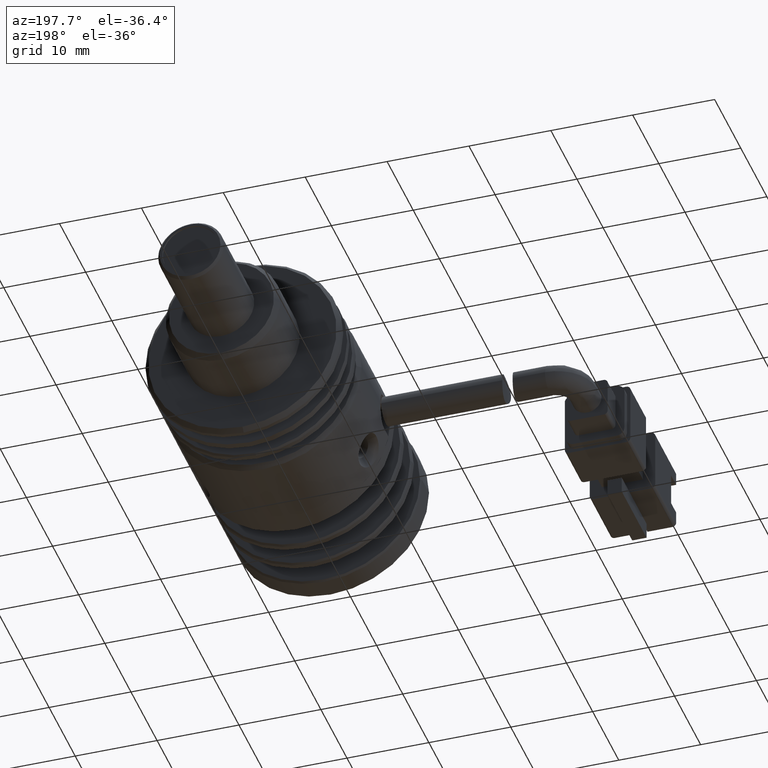
[diagram: clean part render]
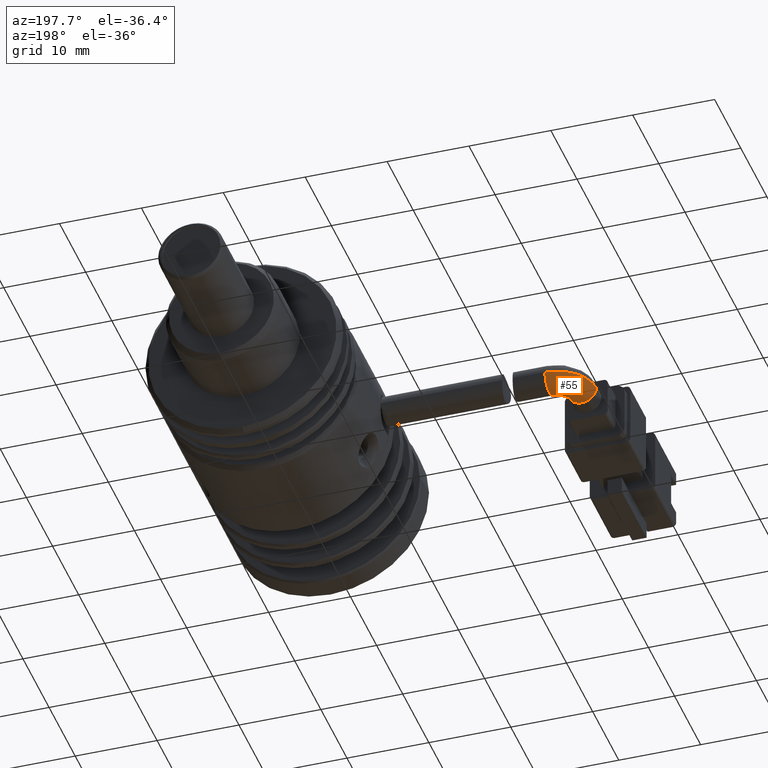
[diagram: same view with one face highlighted and labeled with its STEP entity id]
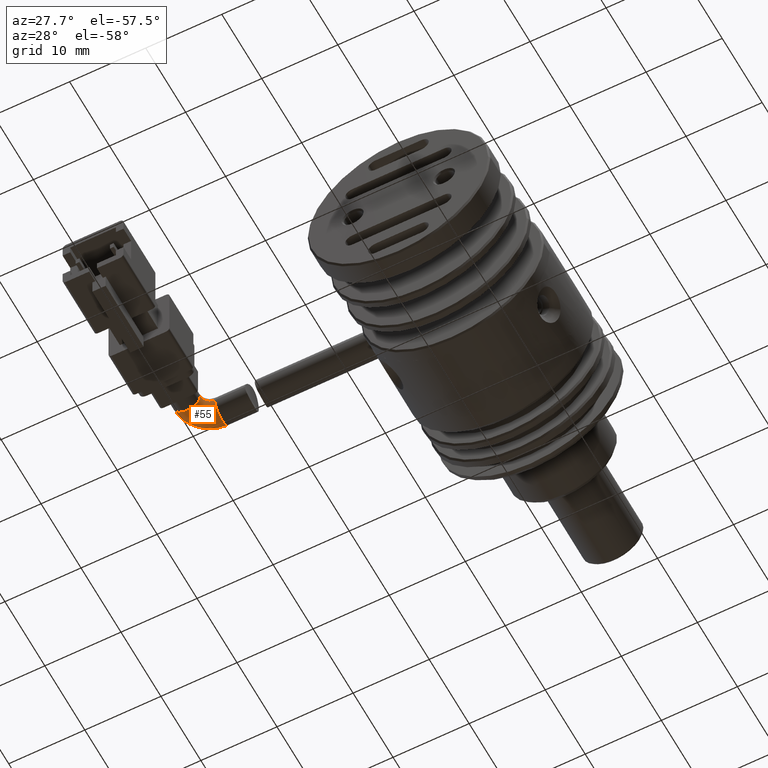
[diagram: same view with one face highlighted and labeled with its STEP entity id]
A machine part, auxiliary view. The second image highlights one B-rep face of the part: STEP entity #55.
A second angle (auxiliary view) of the same face is appended — the face is thin or edge-on in the first view.
In plain terms, the highlighted face is a freeform B-spline surface patch.
Its self-contained STEP definition (entity closure, byte-faithful):
#55 = ADVANCED_FACE ( 'NONE', ( #13978 ), #15853, .T. ) ;
#317 = CARTESIAN_POINT ( 'NONE',  ( -29.42506621236420017, -15.71493551001254829, -9.074035921659389103 ) ) ;
#512 = CARTESIAN_POINT ( 'NONE',  ( -30.67506621236416109, -16.23270246297893493, -9.074035921659401538 ) ) ;
#608 = CARTESIAN_POINT ( 'NONE',  ( -32.20755179109197286, -12.21493551001253763, -12.57403592165937845 ) ) ;
#1028 = EDGE_CURVE ( 'NONE', #16681, #16221, #11079, .T. ) ;
#1451 = DIRECTION ( 'NONE',  ( 0.000000000000000000, -1.000000000000000000, -1.137978600240786046E-15 ) ) ;
#1714 = AXIS2_PLACEMENT_3D ( 'NONE', #4270, #4687, #3077 ) ;
#1960 = DIRECTION ( 'NONE',  ( -1.000000000000000000, 3.559116469604339946E-32, -3.590459175806339545E-17 ) ) ;
#1982 = ORIENTED_EDGE ( 'NONE', *, *, #3957, .T. ) ;
#1996 = AXIS2_PLACEMENT_3D ( 'NONE', #5134, #1960, #7897 ) ;
#2092 = CARTESIAN_POINT ( 'NONE',  ( -34.17506621236413622, -16.96493551001255540, -12.57403592165939266 ) ) ;
#2626 = CIRCLE ( 'NONE', #1714, 1.250000000000001110 ) ;
#3077 = DIRECTION ( 'NONE',  ( 0.000000000000000000, 1.000000000000000000, 1.387778780781444492E-15 ) ) ;
#3957 = EDGE_CURVE ( 'NONE', #16681, #10288, #18325, .T. ) ;
#4033 = AXIS2_PLACEMENT_3D ( 'NONE', #15003, #6066, #18197 ) ;
#4121 = CARTESIAN_POINT ( 'NONE',  ( -29.42506621236420017, -15.71493551001254829, -9.074035921659389103 ) ) ;
#4270 = CARTESIAN_POINT ( 'NONE',  ( -29.42506621236420017, -16.96493551001254829, -9.074035921659399762 ) ) ;
#4687 = DIRECTION ( 'NONE',  ( 3.590459175806344475E-17, 1.387778780781448042E-15, -1.000000000000000000 ) ) ;
#5068 = CARTESIAN_POINT ( 'NONE',  ( -30.15729925939781353, -15.71493551001253586, -12.57403592165939976 ) ) ;
#5134 = CARTESIAN_POINT ( 'NONE',  ( -29.42506621236420017, -13.96493551001255895, -9.074035921659389103 ) ) ;
#6066 = DIRECTION ( 'NONE',  ( 3.590459175806344475E-17, 1.095614826932720052E-15, -1.000000000000000000 ) ) ;
#6102 = ORIENTED_EDGE ( 'NONE', *, *, #17187, .T. ) ;
#6354 = CARTESIAN_POINT ( 'NONE',  ( -29.42506621236417530, -12.21493551001254829, -12.57403592165939266 ) ) ;
#6554 = CARTESIAN_POINT ( 'NONE',  ( -30.15729925939781353, -15.71493551001257316, -9.074035921659401538 ) ) ;
#6653 = CARTESIAN_POINT ( 'NONE',  ( -30.67506621236420017, -16.96493551001254829, -9.074035921659399762 ) ) ;
#6954 = ORIENTED_EDGE ( 'NONE', *, *, #13623, .F. ) ;
#7577 = EDGE_LOOP ( 'NONE', ( #6954, #9857, #1982, #6102 ) ) ;
#7897 = DIRECTION ( 'NONE',  ( 0.000000000000000000, 1.000000000000000000, 9.912705577010326536E-16 ) ) ;
#8593 = CARTESIAN_POINT ( 'NONE',  ( -34.17506621236419306, -14.18244993128475251, -9.074035921659387327 ) ) ;
#8967 = CARTESIAN_POINT ( 'NONE',  ( -32.42506621236420017, -16.96493551001254829, -9.074035921659399762 ) ) ;
#9613 = CARTESIAN_POINT ( 'NONE',  ( -29.42506621236417530, -15.71493551001253941, -12.57403592165939266 ) ) ;
#9857 = ORIENTED_EDGE ( 'NONE', *, *, #1028, .F. ) ;
#9936 = VERTEX_POINT ( 'NONE', #4121 ) ;
#10288 = VERTEX_POINT ( 'NONE', #11168 ) ;
#11079 = CIRCLE ( 'NONE', #12651, 1.750000000000001554 ) ;
#11168 = CARTESIAN_POINT ( 'NONE',  ( -29.42506621236420017, -12.21493551001255895, -9.074035921659389103 ) ) ;
#11218 = CARTESIAN_POINT ( 'NONE',  ( -30.67506621236420017, -16.96493551001254829, -9.074035921659399762 ) ) ;
#12651 = AXIS2_PLACEMENT_3D ( 'NONE', #8967, #1451, #14828 ) ;
#12688 = CARTESIAN_POINT ( 'NONE',  ( -34.17506621236417885, -14.18244993128474540, -12.57403592165939976 ) ) ;
#13623 = EDGE_CURVE ( 'NONE', #16221, #9936, #2626, .T. ) ;
#13978 = FACE_OUTER_BOUND ( 'NONE', #7577, .T. ) ;
#14828 = DIRECTION ( 'NONE',  ( -1.000000000000000000, 0.000000000000000000, 0.000000000000000000 ) ) ;
#14933 = CARTESIAN_POINT ( 'NONE',  ( -34.17506621236420017, -16.96493551001254829, -9.074035921659399762 ) ) ;
#14975 = CIRCLE ( 'NONE', #1996, 1.749999999999999778 ) ;
#15003 = CARTESIAN_POINT ( 'NONE',  ( -29.42506621236420017, -16.96493551001254829, -9.074035921659399762 ) ) ;
#15490 = CARTESIAN_POINT ( 'NONE',  ( -30.67506621236418596, -16.23270246297893138, -12.57403592165939976 ) ) ;
#15853 =( BOUNDED_SURFACE ( )  B_SPLINE_SURFACE ( 3, 3, ( 
 ( #6653, #512, #6554, #317 ),
 ( #18673, #15490, #5068, #9613 ),
 ( #2092, #12688, #608, #6354 ),
 ( #18766, #8593, #17760, #15878 ) ),
 .UNSPECIFIED., .F., .F., .T. ) 
 B_SPLINE_SURFACE_WITH_KNOTS ( ( 4, 4 ),
 ( 4, 4 ),
 ( 0.000000000000000000, 1.000000000000000000 ),
 ( 0.000000000000000000, 1.000000000000000000 ),
 .UNSPECIFIED. ) 
 GEOMETRIC_REPRESENTATION_ITEM ( )  RATIONAL_B_SPLINE_SURFACE ( (
 ( 1.000000000000000000, 0.8047378541243649375, 0.8047378541243649375, 1.000000000000000000),
 ( 0.3333333333333335369, 0.2682459513747884605, 0.2682459513747884605, 0.3333333333333335369),
 ( 0.3333333333333335369, 0.2682459513747884605, 0.2682459513747884605, 0.3333333333333335369),
 ( 1.000000000000000000, 0.8047378541243649375, 0.8047378541243649375, 1.000000000000000000) ) ) 
 REPRESENTATION_ITEM ( '' )  SURFACE ( )  );
#15878 = CARTESIAN_POINT ( 'NONE',  ( -29.42506621236420017, -12.21493551001254119, -9.074035921659389103 ) ) ;
#16221 = VERTEX_POINT ( 'NONE', #11218 ) ;
#16681 = VERTEX_POINT ( 'NONE', #14933 ) ;
#17187 = EDGE_CURVE ( 'NONE', #10288, #9936, #14975, .T. ) ;
#17760 = CARTESIAN_POINT ( 'NONE',  ( -32.20755179109202970, -12.21493551001254296, -9.074035921659387327 ) ) ;
#18197 = DIRECTION ( 'NONE',  ( 0.000000000000000000, 1.000000000000000000, 1.095614826932720052E-15 ) ) ;
#18325 = CIRCLE ( 'NONE', #4033, 4.750000000000000888 ) ;
#18673 = CARTESIAN_POINT ( 'NONE',  ( -30.67506621236416464, -16.96493551001255540, -12.57403592165939266 ) ) ;
#18766 = CARTESIAN_POINT ( 'NONE',  ( -34.17506621236420017, -16.96493551001254829, -9.074035921659399762 ) ) ;